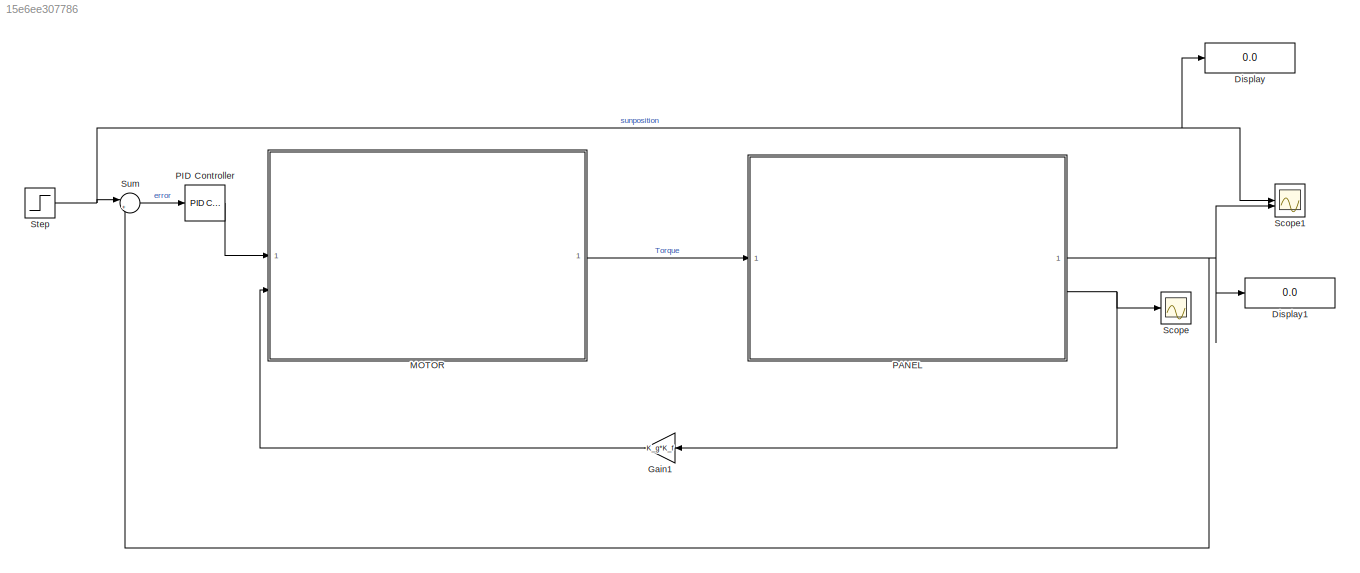
MODEL slx_15e6ee307786
KIND model
CONFIG AbsTol = auto
CONFIG EnableMultiTasking = off
CONFIG FixedStep = auto
CONFIG MaxStep = auto
CONFIG MinStep = auto
CONFIG RelTol = 1e-3
CONFIG SampleTimeConstraint = Unconstrained
CONFIG SolverName = VariableStepAuto
CONFIG StartTime = 0.0
CONFIG StopTime = 10.0
BLOCK [Display] Display
  Decimation = 1
BLOCK [Display] Display1
  Decimation = 1
BLOCK [Gain] Gain1
  Gain = K_g*K_f
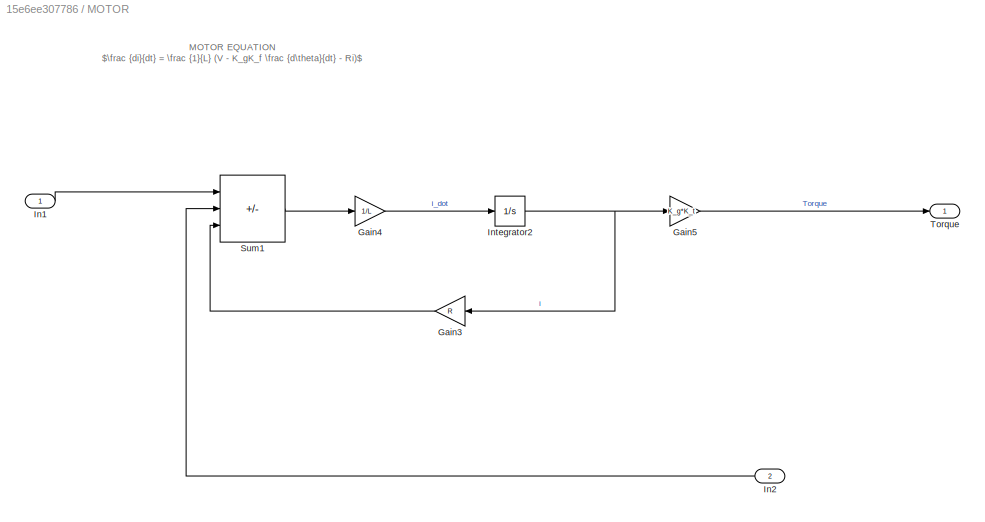
BLOCK [SubSystem] MOTOR
BLOCK [Gain] MOTOR/Gain3
  Gain = R
BLOCK [Gain] MOTOR/Gain4
  Gain = 1/L
BLOCK [Gain] MOTOR/Gain5
  Gain = K_g*K_t
BLOCK [Inport] MOTOR/In1
BLOCK [Inport] MOTOR/In2
  Port = 2
BLOCK [Integrator] MOTOR/Integrator2
BLOCK [Sum] MOTOR/Sum1
  IconShape = rectangular
  Inputs = |+--
BLOCK [Outport] MOTOR/Torque
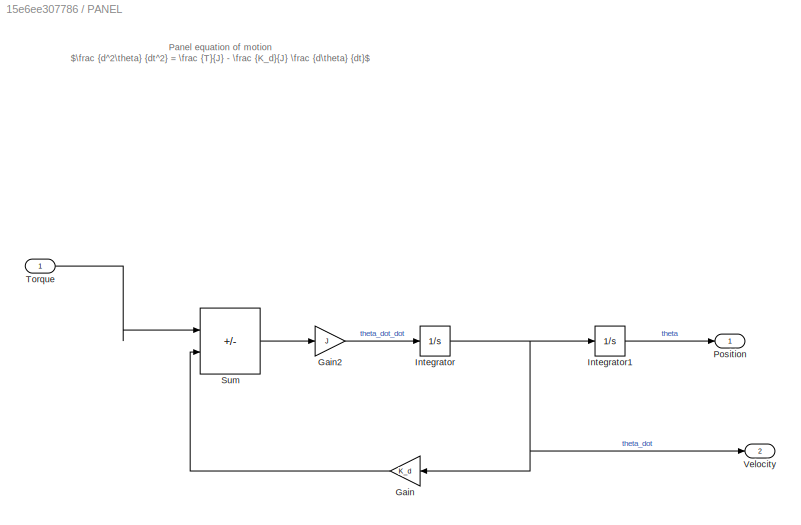
BLOCK [SubSystem] PANEL
BLOCK [Gain] PANEL/Gain
  Gain = K_d
BLOCK [Gain] PANEL/Gain2
  Gain = J
BLOCK [Integrator] PANEL/Integrator
BLOCK [Integrator] PANEL/Integrator1
BLOCK [Outport] PANEL/Position
BLOCK [Sum] PANEL/Sum
  IconShape = rectangular
  Inputs = |+-
BLOCK [Inport] PANEL/Torque
BLOCK [Outport] PANEL/Velocity
  Port = 2
BLOCK [Reference] PID Controller  REF=slpidlib/PID Controller
  LibrarySourceBlock = simulink/Continuous/PID Controller
  SourceBlock = slpidlib/PID Controller
  SourceType = PID 1dof
BLOCK [Scope] Scope
  Floating = off
  NumInputPorts = 1
  ScopeSpecificationString = Simulink.scopes.TimeScopeBlockCfg('CurrentConfiguration', extmgr.ConfigurationSet(extmgr.Configuration('Core','General UI',true),extmgr.Configuration('Core','Source UI',true),extmgr.Configuration('Sources','WiredSimulink',true),extmgr.Configuration('Visuals','Time Domain',true,'SerializedDisplays',{struct('MinYLimReal','-0.32131','MaxYLimReal','1.93487','YLabelReal','','MinYLimMag','0.00000','MaxY...<+1390ch>
BLOCK [Scope] Scope1
  Floating = off
  NumInputPorts = 2
  ScopeSpecificationString = Simulink.scopes.TimeScopeBlockCfg('CurrentConfiguration', extmgr.ConfigurationSet(extmgr.Configuration('Core','General UI',true),extmgr.Configuration('Core','Source UI',true),extmgr.Configuration('Sources','WiredSimulink',true,'DataLoggingVariableName','ScopeData1'),extmgr.Configuration('Visuals','Time Domain',true,'SerializedDisplays',{struct('MinYLimReal','-0.14908','MaxYLimReal','1.34175','YLab...<+1439ch>
BLOCK [Step] Step
  SampleTime = 0
BLOCK [Sum] Sum
  Inputs = |+-
ANNOTATION MOTOR: MOTOR EQUATION $\frac {di}{dt} = \frac {1}{L} (V - K_gK_f \frac {d\theta}{dt} - Ri)$
ANNOTATION PANEL: Panel equation of motion $\frac {d^2\theta} {dt^2} = \frac {T}{J} - \frac {K_d}{J} \frac {d\theta} {dt}$
LINE Gain1:1 -> MOTOR:2
LINE MOTOR/Gain3:1 -> MOTOR/Sum1:3
LINE MOTOR/Gain4:1 -> MOTOR/Integrator2:1
LINE MOTOR/Gain5:1 -> MOTOR/Torque:1
LINE MOTOR/In1:1 -> MOTOR/Sum1:1
LINE MOTOR/In2:1 -> MOTOR/Sum1:2
NET MOTOR/Integrator2:1 -> MOTOR/Gain3:1, MOTOR/Gain5:1
LINE MOTOR/Sum1:1 -> MOTOR/Gain4:1
LINE MOTOR:1 -> PANEL:1
LINE PANEL/Gain2:1 -> PANEL/Integrator:1
LINE PANEL/Gain:1 -> PANEL/Sum:2
LINE PANEL/Integrator1:1 -> PANEL/Position:1
NET PANEL/Integrator:1 -> PANEL/Gain:1, PANEL/Integrator1:1, PANEL/Velocity:1
LINE PANEL/Sum:1 -> PANEL/Gain2:1
LINE PANEL/Torque:1 -> PANEL/Sum:1
NET PANEL:1 -> Display1:1, Scope1:2, Sum:2
NET PANEL:2 -> Gain1:1, Scope:1
LINE PID Controller:1 -> MOTOR:1
NET Step:1 -> Display:1, Scope1:1, Sum:1
LINE Sum:1 -> PID Controller:1
note: NET lines group one-source signal fan-out (src -> all destinations, sorted); 1:1 wires keep LINE
